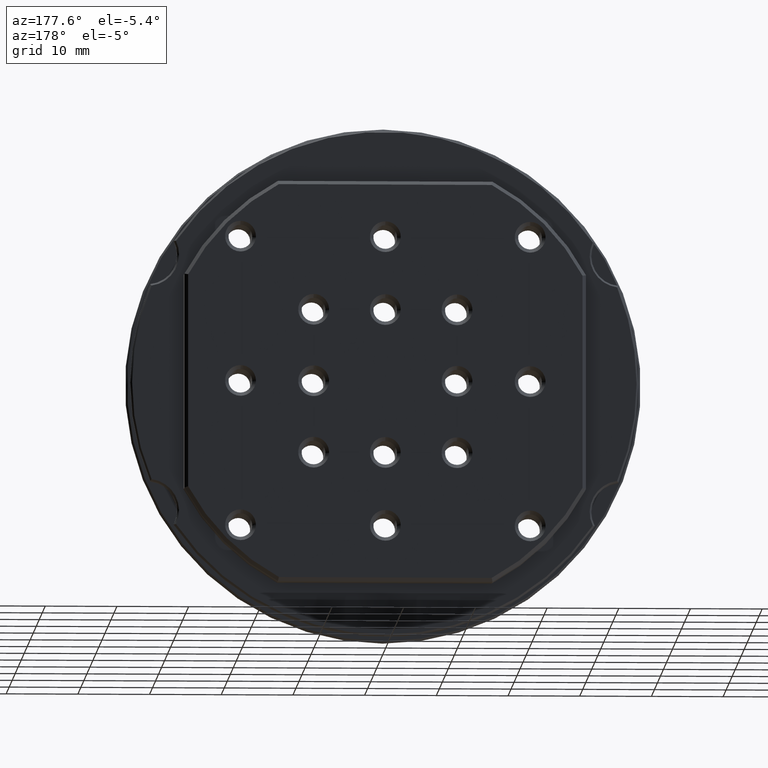
[diagram: clean part render]
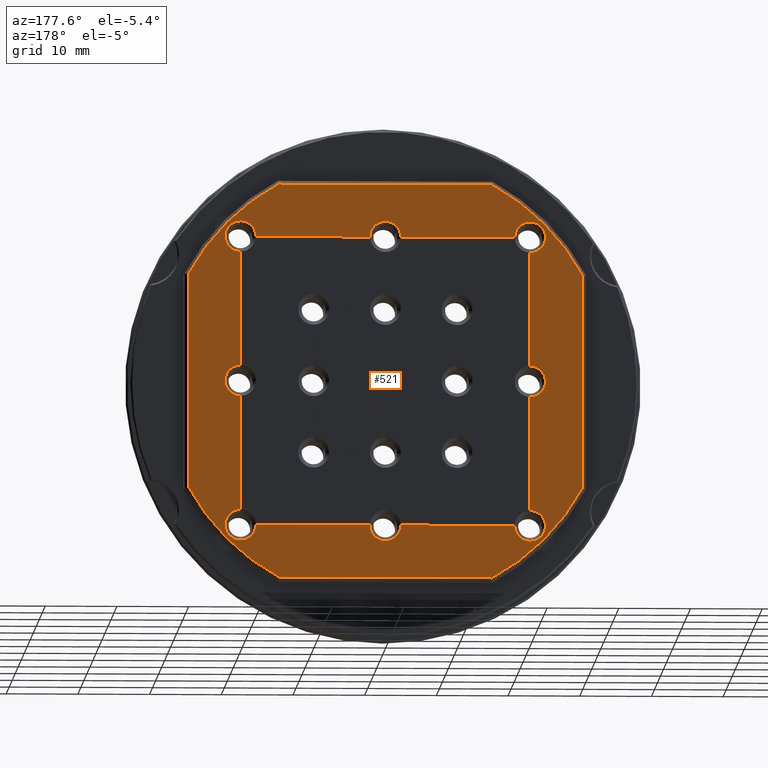
[diagram: same view with one face highlighted and labeled with its STEP entity id]
A machine part, auxiliary view. The second image highlights one B-rep face of the part: STEP entity #521.
In plain terms, the highlighted planar face has unit normal (0, 1, 0).
Its self-contained STEP definition (entity closure, byte-faithful):
#53 = CARTESIAN_POINT ( 'NONE',  ( -20.15000000000000213, 8.900000000000000355, 2.149418526020452802 ) ) ;
#72 = VERTEX_POINT ( 'NONE', #2842 ) ;
#73 = DIRECTION ( 'NONE',  ( 0.000000000000000000, 0.000000000000000000, 1.000000000000000000 ) ) ;
#83 = CARTESIAN_POINT ( 'NONE',  ( 20.15000000000000213, 8.900000000000000355, 2.149418526020467013 ) ) ;
#99 = EDGE_CURVE ( 'NONE', #161, #1154, #1215, .T. ) ;
#101 = VERTEX_POINT ( 'NONE', #5266 ) ;
#105 = VERTEX_POINT ( 'NONE', #2138 ) ;
#120 = DIRECTION ( 'NONE',  ( -0.000000000000000000, 1.000000000000000000, -0.000000000000000000 ) ) ;
#128 = CARTESIAN_POINT ( 'NONE',  ( -27.49999999999997868, 8.900000000000000355, 0.000000000000000000 ) ) ;
#143 = EDGE_CURVE ( 'NONE', #6632, #900, #5487, .T. ) ;
#152 = DIRECTION ( 'NONE',  ( 8.609049508569761530E-17, 0.000000000000000000, 1.000000000000000000 ) ) ;
#161 = VERTEX_POINT ( 'NONE', #7356 ) ;
#226 = DIRECTION ( 'NONE',  ( 0.000000000000000000, 1.000000000000000000, 0.000000000000000000 ) ) ;
#237 = CARTESIAN_POINT ( 'NONE',  ( -20.15000000000000213, 8.900000000000000355, -20.15000000000000568 ) ) ;
#326 = LINE ( 'NONE', #4583, #6778 ) ;
#351 = CARTESIAN_POINT ( 'NONE',  ( -14.84292760879740314, 8.900000000000000355, -27.49999999999997868 ) ) ;
#364 = DIRECTION ( 'NONE',  ( -1.000000000000000000, -0.000000000000000000, -0.000000000000000000 ) ) ;
#420 = CARTESIAN_POINT ( 'NONE',  ( -20.15000000000000213, 8.900000000000000355, -20.15000000000000568 ) ) ;
#472 = AXIS2_PLACEMENT_3D ( 'NONE', #4297, #5599, #1836 ) ;
#476 = VERTEX_POINT ( 'NONE', #3898 ) ;
#483 = EDGE_CURVE ( 'NONE', #5213, #7042, #6382, .T. ) ;
#521 = ADVANCED_FACE ( 'NONE', ( #4480, #5792 ), #7082, .T. ) ;
#542 = EDGE_CURVE ( 'NONE', #4842, #2714, #6972, .T. ) ;
#550 = AXIS2_PLACEMENT_3D ( 'NONE', #2195, #6021, #1693 ) ;
#578 = CARTESIAN_POINT ( 'NONE',  ( 14.84292760879741202, 8.900000000000000355, -27.49999999999998224 ) ) ;
#593 = CIRCLE ( 'NONE', #8093, 31.24999999999998579 ) ;
#606 = DIRECTION ( 'NONE',  ( 1.000000000000000000, 0.000000000000000000, 0.000000000000000000 ) ) ;
#609 = DIRECTION ( 'NONE',  ( 0.000000000000000000, 0.000000000000000000, 1.000000000000000000 ) ) ;
#624 = ORIENTED_EDGE ( 'NONE', *, *, #4844, .T. ) ;
#629 = AXIS2_PLACEMENT_3D ( 'NONE', #6333, #3838, #5789 ) ;
#639 = CARTESIAN_POINT ( 'NONE',  ( 2.632990618166809235E-16, 8.900000000000000355, -22.34999999999999432 ) ) ;
#641 = CIRCLE ( 'NONE', #998, 2.149999999999999023 ) ;
#692 = CIRCLE ( 'NONE', #4410, 2.149999999999999023 ) ;
#744 = DIRECTION ( 'NONE',  ( 0.000000000000000000, 0.000000000000000000, 1.000000000000000000 ) ) ;
#769 = CARTESIAN_POINT ( 'NONE',  ( -20.19999999999999929, 8.900000000000000355, 20.19999999999999574 ) ) ;
#826 = CARTESIAN_POINT ( 'NONE',  ( 27.50000000000000000, 8.900000000000000355, 0.000000000000000000 ) ) ;
#837 = ORIENTED_EDGE ( 'NONE', *, *, #3232, .F. ) ;
#845 = ORIENTED_EDGE ( 'NONE', *, *, #2710, .F. ) ;
#865 = DIRECTION ( 'NONE',  ( -0.000000000000000000, 1.000000000000000000, -0.000000000000000000 ) ) ;
#900 = VERTEX_POINT ( 'NONE', #6964 ) ;
#915 = CIRCLE ( 'NONE', #8105, 2.149999999999999023 ) ;
#953 = VERTEX_POINT ( 'NONE', #4311 ) ;
#965 = VERTEX_POINT ( 'NONE', #3858 ) ;
#975 = EDGE_CURVE ( 'NONE', #3312, #953, #1998, .T. ) ;
#989 = DIRECTION ( 'NONE',  ( 0.000000000000000000, 0.000000000000000000, 1.000000000000000000 ) ) ;
#998 = AXIS2_PLACEMENT_3D ( 'NONE', #769, #5215, #2545 ) ;
#1008 = AXIS2_PLACEMENT_3D ( 'NONE', #6035, #7913, #4147 ) ;
#1137 = DIRECTION ( 'NONE',  ( -0.000000000000000000, 1.000000000000000000, -0.000000000000000000 ) ) ;
#1154 = VERTEX_POINT ( 'NONE', #4849 ) ;
#1195 = DIRECTION ( 'NONE',  ( 0.000000000000000000, 0.000000000000000000, 1.000000000000000000 ) ) ;
#1215 = CIRCLE ( 'NONE', #6411, 31.24999999999999289 ) ;
#1228 = LINE ( 'NONE', #826, #8169 ) ;
#1246 = AXIS2_PLACEMENT_3D ( 'NONE', #4128, #4157, #1195 ) ;
#1261 = DIRECTION ( 'NONE',  ( 0.000000000000000000, 0.000000000000000000, 1.000000000000000000 ) ) ;
#1271 = CARTESIAN_POINT ( 'NONE',  ( 20.20000000000000284, 8.900000000000000355, 20.19999999999999929 ) ) ;
#1296 = DIRECTION ( 'NONE',  ( -0.000000000000000000, 1.000000000000000000, -0.000000000000000000 ) ) ;
#1297 = DIRECTION ( 'NONE',  ( -0.000000000000000000, 1.000000000000000000, -0.000000000000000000 ) ) ;
#1344 = EDGE_CURVE ( 'NONE', #953, #72, #6072, .T. ) ;
#1358 = EDGE_CURVE ( 'NONE', #6202, #105, #692, .T. ) ;
#1373 = VECTOR ( 'NONE', #4714, 1000.000000000000000 ) ;
#1385 = CARTESIAN_POINT ( 'NONE',  ( 20.19999999999999929, 8.900000000000000355, -20.19999999999999929 ) ) ;
#1387 = CARTESIAN_POINT ( 'NONE',  ( 0.000000000000000000, 8.900000000000000355, -20.19999999999999574 ) ) ;
#1399 = DIRECTION ( 'NONE',  ( 8.609049508569761530E-17, 0.000000000000000000, 1.000000000000000000 ) ) ;
#1426 = AXIS2_PLACEMENT_3D ( 'NONE', #7698, #1296, #1960 ) ;
#1448 = DIRECTION ( 'NONE',  ( 0.000000000000000000, 0.000000000000000000, 1.000000000000000000 ) ) ;
#1449 = EDGE_CURVE ( 'NONE', #101, #161, #6855, .T. ) ;
#1481 = CARTESIAN_POINT ( 'NONE',  ( -20.14999999999999858, 8.900000000000000355, 20.14999999999999858 ) ) ;
#1485 = AXIS2_PLACEMENT_3D ( 'NONE', #7523, #2509, #1261 ) ;
#1496 = CARTESIAN_POINT ( 'NONE',  ( 0.000000000000000000, 8.900000000000000355, 0.000000000000000000 ) ) ;
#1504 = AXIS2_PLACEMENT_3D ( 'NONE', #4732, #6039, #7266 ) ;
#1513 = ORIENTED_EDGE ( 'NONE', *, *, #542, .F. ) ;
#1527 = CARTESIAN_POINT ( 'NONE',  ( -20.20000000000000284, 8.900000000000000355, -2.150000000000012790 ) ) ;
#1554 = VERTEX_POINT ( 'NONE', #2694 ) ;
#1593 = CARTESIAN_POINT ( 'NONE',  ( -20.20000000000000284, 8.900000000000000355, 2.149999999999985256 ) ) ;
#1620 = CARTESIAN_POINT ( 'NONE',  ( 2.149418526020467901, 8.900000000000000355, 20.14999999999999858 ) ) ;
#1683 = ORIENTED_EDGE ( 'NONE', *, *, #6717, .F. ) ;
#1693 = DIRECTION ( 'NONE',  ( 0.000000000000000000, 0.000000000000000000, 1.000000000000000000 ) ) ;
#1698 = CARTESIAN_POINT ( 'NONE',  ( 14.84292760879738893, 8.900000000000000355, 27.49999999999999289 ) ) ;
#1773 = AXIS2_PLACEMENT_3D ( 'NONE', #1387, #7189, #2755 ) ;
#1801 = CARTESIAN_POINT ( 'NONE',  ( 27.50000000000000000, 8.900000000000000355, 14.84292760879737827 ) ) ;
#1805 = ORIENTED_EDGE ( 'NONE', *, *, #143, .F. ) ;
#1836 = DIRECTION ( 'NONE',  ( 0.000000000000000000, 0.000000000000000000, 1.000000000000000000 ) ) ;
#1843 = CIRCLE ( 'NONE', #3456, 2.149999999999999023 ) ;
#1865 = VECTOR ( 'NONE', #364, 1000.000000000000000 ) ;
#1891 = VECTOR ( 'NONE', #5120, 1000.000000000000000 ) ;
#1914 = CIRCLE ( 'NONE', #5781, 2.149999999999999023 ) ;
#1954 = CARTESIAN_POINT ( 'NONE',  ( -20.15000000000000213, 8.900000000000000355, -20.15000000000000568 ) ) ;
#1960 = DIRECTION ( 'NONE',  ( 0.000000000000000000, 0.000000000000000000, 1.000000000000000000 ) ) ;
#1977 = ORIENTED_EDGE ( 'NONE', *, *, #2031, .F. ) ;
#1998 = CIRCLE ( 'NONE', #7407, 2.149999999999999023 ) ;
#2031 = EDGE_CURVE ( 'NONE', #4835, #4975, #5206, .T. ) ;
#2036 = ORIENTED_EDGE ( 'NONE', *, *, #5270, .F. ) ;
#2045 = CARTESIAN_POINT ( 'NONE',  ( 20.20000000000000284, 8.900000000000000355, 2.149999999999999023 ) ) ;
#2131 = ORIENTED_EDGE ( 'NONE', *, *, #2411, .F. ) ;
#2134 = ORIENTED_EDGE ( 'NONE', *, *, #1449, .T. ) ;
#2138 = CARTESIAN_POINT ( 'NONE',  ( -20.15000000000000213, 8.900000000000000355, -18.05058147397953050 ) ) ;
#2153 = ORIENTED_EDGE ( 'NONE', *, *, #5078, .F. ) ;
#2169 = CARTESIAN_POINT ( 'NONE',  ( -20.19999999999999929, 8.900000000000000355, 20.19999999999999574 ) ) ;
#2190 = CARTESIAN_POINT ( 'NONE',  ( 20.19999999999999929, 8.900000000000000355, -20.19999999999999929 ) ) ;
#2195 = CARTESIAN_POINT ( 'NONE',  ( -20.20000000000000284, 8.900000000000000355, -1.387778780781445676E-14 ) ) ;
#2241 = AXIS2_PLACEMENT_3D ( 'NONE', #1496, #4036, #2806 ) ;
#2254 = VERTEX_POINT ( 'NONE', #578 ) ;
#2291 = EDGE_CURVE ( 'NONE', #1554, #2666, #6544, .T. ) ;
#2393 = DIRECTION ( 'NONE',  ( -0.000000000000000000, 1.000000000000000000, -0.000000000000000000 ) ) ;
#2411 = EDGE_CURVE ( 'NONE', #4544, #6202, #1843, .T. ) ;
#2442 = CARTESIAN_POINT ( 'NONE',  ( 0.000000000000000000, 8.900000000000000355, -20.19999999999999574 ) ) ;
#2444 = AXIS2_PLACEMENT_3D ( 'NONE', #2442, #6257, #3071 ) ;
#2480 = CARTESIAN_POINT ( 'NONE',  ( 20.19999999999999929, 8.900000000000000355, -18.05000000000000071 ) ) ;
#2483 = ORIENTED_EDGE ( 'NONE', *, *, #3817, .T. ) ;
#2509 = DIRECTION ( 'NONE',  ( -0.000000000000000000, 1.000000000000000000, -0.000000000000000000 ) ) ;
#2545 = DIRECTION ( 'NONE',  ( 0.000000000000000000, 0.000000000000000000, 1.000000000000000000 ) ) ;
#2546 = EDGE_CURVE ( 'NONE', #105, #965, #5125, .T. ) ;
#2550 = CARTESIAN_POINT ( 'NONE',  ( 20.15000000000000213, 8.900000000000000355, -20.15000000000000568 ) ) ;
#2570 = VERTEX_POINT ( 'NONE', #2045 ) ;
#2584 = VECTOR ( 'NONE', #3896, 1000.000000000000000 ) ;
#2592 = DIRECTION ( 'NONE',  ( -1.000000000000000000, 0.000000000000000000, 1.239088197126290817E-16 ) ) ;
#2660 = VERTEX_POINT ( 'NONE', #351 ) ;
#2665 = CARTESIAN_POINT ( 'NONE',  ( 18.05058147397953405, 8.900000000000000355, 20.14999999999999858 ) ) ;
#2666 = VERTEX_POINT ( 'NONE', #6088 ) ;
#2676 = ORIENTED_EDGE ( 'NONE', *, *, #2291, .F. ) ;
#2684 = VERTEX_POINT ( 'NONE', #3452 ) ;
#2694 = CARTESIAN_POINT ( 'NONE',  ( 20.20000000000000284, 8.900000000000000355, -2.149999999999999023 ) ) ;
#2710 = EDGE_CURVE ( 'NONE', #965, #3920, #7587, .T. ) ;
#2714 = VERTEX_POINT ( 'NONE', #1620 ) ;
#2736 = DIRECTION ( 'NONE',  ( 0.000000000000000000, 1.000000000000000000, 0.000000000000000000 ) ) ;
#2755 = DIRECTION ( 'NONE',  ( 0.000000000000000000, 0.000000000000000000, 1.000000000000000000 ) ) ;
#2764 = CARTESIAN_POINT ( 'NONE',  ( 27.50000000000000000, 8.900000000000000355, -14.84292760879737649 ) ) ;
#2806 = DIRECTION ( 'NONE',  ( 0.000000000000000000, -0.000000000000000000, 1.000000000000000000 ) ) ;
#2842 = CARTESIAN_POINT ( 'NONE',  ( 20.20000000000000284, 8.900000000000000355, 18.05000000000000071 ) ) ;
#2844 = CARTESIAN_POINT ( 'NONE',  ( -20.14999999999999858, 8.900000000000000355, 18.05058147397953050 ) ) ;
#2915 = ORIENTED_EDGE ( 'NONE', *, *, #7750, .T. ) ;
#2923 = CARTESIAN_POINT ( 'NONE',  ( 18.05058147397953405, 8.900000000000000355, -20.15000000000000568 ) ) ;
#2995 = EDGE_CURVE ( 'NONE', #3749, #3100, #5313, .T. ) ;
#2996 = CARTESIAN_POINT ( 'NONE',  ( 20.15000000000000213, 8.900000000000000355, -18.05058147397953405 ) ) ;
#3010 = VERTEX_POINT ( 'NONE', #2764 ) ;
#3030 = ORIENTED_EDGE ( 'NONE', *, *, #1358, .F. ) ;
#3034 = LINE ( 'NONE', #7477, #6036 ) ;
#3071 = DIRECTION ( 'NONE',  ( 0.000000000000000000, 0.000000000000000000, 1.000000000000000000 ) ) ;
#3072 = EDGE_CURVE ( 'NONE', #476, #6632, #1914, .T. ) ;
#3076 = DIRECTION ( 'NONE',  ( -0.000000000000000000, 1.000000000000000000, -0.000000000000000000 ) ) ;
#3100 = VERTEX_POINT ( 'NONE', #2844 ) ;
#3105 = CIRCLE ( 'NONE', #472, 2.149999999999999023 ) ;
#3184 = CARTESIAN_POINT ( 'NONE',  ( 0.000000000000000000, 8.900000000000000355, 22.34999999999999432 ) ) ;
#3207 = EDGE_LOOP ( 'NONE', ( #5805, #3500, #1977, #6662, #6147, #2676, #4662, #3690, #1683, #8075, #4136, #5569, #2153, #1513, #6121, #1805, #4442, #2036, #5614, #5669, #837, #5010, #845, #3278, #3030, #2131, #6456, #6566, #3401, #3811 ) ) ;
#3219 = CIRCLE ( 'NONE', #1008, 2.149999999999999023 ) ;
#3232 = EDGE_CURVE ( 'NONE', #6235, #3749, #3884, .T. ) ;
#3261 = DIRECTION ( 'NONE',  ( -0.000000000000000000, 1.000000000000000000, -0.000000000000000000 ) ) ;
#3278 = ORIENTED_EDGE ( 'NONE', *, *, #2546, .F. ) ;
#3312 = VERTEX_POINT ( 'NONE', #2665 ) ;
#3348 = EDGE_CURVE ( 'NONE', #1154, #3578, #4875, .T. ) ;
#3357 = EDGE_CURVE ( 'NONE', #2570, #1554, #6884, .T. ) ;
#3401 = ORIENTED_EDGE ( 'NONE', *, *, #5990, .F. ) ;
#3452 = CARTESIAN_POINT ( 'NONE',  ( 20.15000000000000568, 8.900000000000000355, 18.05058147397953405 ) ) ;
#3456 = AXIS2_PLACEMENT_3D ( 'NONE', #6993, #3261, #609 ) ;
#3500 = ORIENTED_EDGE ( 'NONE', *, *, #5495, .F. ) ;
#3578 = VERTEX_POINT ( 'NONE', #1698 ) ;
#3607 = CIRCLE ( 'NONE', #2444, 2.149999999999999023 ) ;
#3665 = AXIS2_PLACEMENT_3D ( 'NONE', #6659, #7909, #989 ) ;
#3690 = ORIENTED_EDGE ( 'NONE', *, *, #6827, .F. ) ;
#3702 = CARTESIAN_POINT ( 'NONE',  ( -20.19999999999999929, 8.900000000000000355, 20.19999999999999574 ) ) ;
#3749 = VERTEX_POINT ( 'NONE', #53 ) ;
#3752 = DIRECTION ( 'NONE',  ( -0.000000000000000000, 1.000000000000000000, -0.000000000000000000 ) ) ;
#3757 = CARTESIAN_POINT ( 'NONE',  ( 0.000000000000000000, 8.900000000000000355, 0.000000000000000000 ) ) ;
#3811 = ORIENTED_EDGE ( 'NONE', *, *, #483, .F. ) ;
#3817 = EDGE_CURVE ( 'NONE', #2660, #101, #593, .T. ) ;
#3838 = DIRECTION ( 'NONE',  ( -0.000000000000000000, 1.000000000000000000, -0.000000000000000000 ) ) ;
#3858 = CARTESIAN_POINT ( 'NONE',  ( -20.15000000000000213, 8.900000000000000355, -2.149418526020480336 ) ) ;
#3884 = CIRCLE ( 'NONE', #550, 2.149999999999999023 ) ;
#3896 = DIRECTION ( 'NONE',  ( 0.000000000000000000, 0.000000000000000000, 1.000000000000000000 ) ) ;
#3897 = DIRECTION ( 'NONE',  ( -0.000000000000000000, 1.000000000000000000, -0.000000000000000000 ) ) ;
#3898 = CARTESIAN_POINT ( 'NONE',  ( -20.19999999999999929, 8.900000000000000355, 22.34999999999999432 ) ) ;
#3920 = VERTEX_POINT ( 'NONE', #1527 ) ;
#3941 = EDGE_CURVE ( 'NONE', #8208, #5213, #6842, .T. ) ;
#3957 = CIRCLE ( 'NONE', #5414, 31.24999999999998934 ) ;
#4036 = DIRECTION ( 'NONE',  ( 0.000000000000000000, 1.000000000000000000, 0.000000000000000000 ) ) ;
#4128 = CARTESIAN_POINT ( 'NONE',  ( 20.20000000000000284, 8.900000000000000355, 0.000000000000000000 ) ) ;
#4136 = ORIENTED_EDGE ( 'NONE', *, *, #1344, .F. ) ;
#4147 = DIRECTION ( 'NONE',  ( 0.000000000000000000, 0.000000000000000000, 1.000000000000000000 ) ) ;
#4157 = DIRECTION ( 'NONE',  ( -0.000000000000000000, 1.000000000000000000, -0.000000000000000000 ) ) ;
#4218 = CIRCLE ( 'NONE', #629, 2.149999999999999023 ) ;
#4245 = AXIS2_PLACEMENT_3D ( 'NONE', #1385, #3897, #6458 ) ;
#4297 = CARTESIAN_POINT ( 'NONE',  ( 20.20000000000000284, 8.900000000000000355, 20.19999999999999929 ) ) ;
#4303 = EDGE_CURVE ( 'NONE', #4787, #3010, #1228, .T. ) ;
#4311 = CARTESIAN_POINT ( 'NONE',  ( 20.20000000000000284, 8.900000000000000355, 22.34999999999999787 ) ) ;
#4322 = CARTESIAN_POINT ( 'NONE',  ( -20.19999999999999929, 8.900000000000000355, -20.19999999999999574 ) ) ;
#4347 = CIRCLE ( 'NONE', #1246, 2.149999999999999023 ) ;
#4354 = DIRECTION ( 'NONE',  ( 0.000000000000000000, 0.000000000000000000, 1.000000000000000000 ) ) ;
#4379 = CARTESIAN_POINT ( 'NONE',  ( 20.20000000000000284, 8.900000000000000355, 20.19999999999999929 ) ) ;
#4410 = AXIS2_PLACEMENT_3D ( 'NONE', #4322, #3076, #7515 ) ;
#4442 = ORIENTED_EDGE ( 'NONE', *, *, #3072, .F. ) ;
#4458 = CARTESIAN_POINT ( 'NONE',  ( 3.407492542097299537E-15, 8.900000000000000355, 27.49999999999999645 ) ) ;
#4461 = AXIS2_PLACEMENT_3D ( 'NONE', #2190, #865, #5315 ) ;
#4475 = CARTESIAN_POINT ( 'NONE',  ( 20.15000000000000213, 8.900000000000000355, -20.15000000000000568 ) ) ;
#4480 = FACE_BOUND ( 'NONE', #3207, .T. ) ;
#4522 = DIRECTION ( 'NONE',  ( 0.000000000000000000, 1.000000000000000000, 0.000000000000000000 ) ) ;
#4544 = VERTEX_POINT ( 'NONE', #6786 ) ;
#4571 = LINE ( 'NONE', #4475, #1891 ) ;
#4581 = EDGE_CURVE ( 'NONE', #72, #2684, #3105, .T. ) ;
#4583 = CARTESIAN_POINT ( 'NONE',  ( -3.407492542097297565E-15, 8.900000000000000355, -27.49999999999998224 ) ) ;
#4655 = DIRECTION ( 'NONE',  ( 0.000000000000000000, 0.000000000000000000, 1.000000000000000000 ) ) ;
#4662 = ORIENTED_EDGE ( 'NONE', *, *, #3357, .F. ) ;
#4701 = CARTESIAN_POINT ( 'NONE',  ( -20.19999999999999929, 8.900000000000000355, -18.04999999999999716 ) ) ;
#4714 = DIRECTION ( 'NONE',  ( -1.000000000000000000, -0.000000000000000000, -0.000000000000000000 ) ) ;
#4725 = CARTESIAN_POINT ( 'NONE',  ( -18.05058147397953405, 8.900000000000000355, 20.14999999999999858 ) ) ;
#4732 = CARTESIAN_POINT ( 'NONE',  ( 0.000000000000000000, 8.900000000000000355, 20.19999999999999574 ) ) ;
#4768 = EDGE_CURVE ( 'NONE', #3100, #7490, #915, .T. ) ;
#4787 = VERTEX_POINT ( 'NONE', #1801 ) ;
#4835 = VERTEX_POINT ( 'NONE', #2480 ) ;
#4842 = VERTEX_POINT ( 'NONE', #3184 ) ;
#4844 = EDGE_CURVE ( 'NONE', #3578, #4787, #8048, .T. ) ;
#4849 = CARTESIAN_POINT ( 'NONE',  ( -14.84292760879738893, 8.900000000000000355, 27.49999999999999645 ) ) ;
#4875 = LINE ( 'NONE', #4458, #5090 ) ;
#4926 = ORIENTED_EDGE ( 'NONE', *, *, #4303, .T. ) ;
#4975 = VERTEX_POINT ( 'NONE', #7339 ) ;
#5010 = ORIENTED_EDGE ( 'NONE', *, *, #5218, .F. ) ;
#5075 = LINE ( 'NONE', #2550, #5786 ) ;
#5078 = EDGE_CURVE ( 'NONE', #2714, #3312, #3034, .T. ) ;
#5090 = VECTOR ( 'NONE', #7053, 1000.000000000000000 ) ;
#5120 = DIRECTION ( 'NONE',  ( -8.609049508569761530E-17, -0.000000000000000000, -1.000000000000000000 ) ) ;
#5125 = LINE ( 'NONE', #7121, #6030 ) ;
#5206 = CIRCLE ( 'NONE', #4245, 2.149999999999999023 ) ;
#5213 = VERTEX_POINT ( 'NONE', #5811 ) ;
#5215 = DIRECTION ( 'NONE',  ( -0.000000000000000000, 1.000000000000000000, -0.000000000000000000 ) ) ;
#5218 = EDGE_CURVE ( 'NONE', #3920, #6235, #6316, .T. ) ;
#5239 = DIRECTION ( 'NONE',  ( -0.000000000000000000, 1.000000000000000000, -0.000000000000000000 ) ) ;
#5266 = CARTESIAN_POINT ( 'NONE',  ( -27.49999999999998224, 8.900000000000000355, -14.84292760879740314 ) ) ;
#5270 = EDGE_CURVE ( 'NONE', #7490, #476, #641, .T. ) ;
#5313 = LINE ( 'NONE', #1954, #7678 ) ;
#5315 = DIRECTION ( 'NONE',  ( 0.000000000000000000, 0.000000000000000000, 1.000000000000000000 ) ) ;
#5403 = CIRCLE ( 'NONE', #1485, 2.149999999999999023 ) ;
#5414 = AXIS2_PLACEMENT_3D ( 'NONE', #7184, #226, #4655 ) ;
#5450 = CIRCLE ( 'NONE', #4461, 2.149999999999999023 ) ;
#5487 = LINE ( 'NONE', #1481, #6978 ) ;
#5495 = EDGE_CURVE ( 'NONE', #4975, #8208, #5403, .T. ) ;
#5569 = ORIENTED_EDGE ( 'NONE', *, *, #975, .F. ) ;
#5599 = DIRECTION ( 'NONE',  ( -0.000000000000000000, 1.000000000000000000, -0.000000000000000000 ) ) ;
#5614 = ORIENTED_EDGE ( 'NONE', *, *, #4768, .F. ) ;
#5645 = CARTESIAN_POINT ( 'NONE',  ( 20.20000000000000284, 8.900000000000000355, 0.000000000000000000 ) ) ;
#5663 = LINE ( 'NONE', #420, #1865 ) ;
#5666 = EDGE_CURVE ( 'NONE', #2254, #2660, #326, .T. ) ;
#5669 = ORIENTED_EDGE ( 'NONE', *, *, #2995, .F. ) ;
#5781 = AXIS2_PLACEMENT_3D ( 'NONE', #2169, #5239, #5916 ) ;
#5786 = VECTOR ( 'NONE', #5817, 1000.000000000000000 ) ;
#5789 = DIRECTION ( 'NONE',  ( 0.000000000000000000, 0.000000000000000000, 1.000000000000000000 ) ) ;
#5792 = FACE_OUTER_BOUND ( 'NONE', #6468, .T. ) ;
#5805 = ORIENTED_EDGE ( 'NONE', *, *, #3941, .F. ) ;
#5811 = CARTESIAN_POINT ( 'NONE',  ( 2.149418526020468345, 8.900000000000000355, -20.15000000000000568 ) ) ;
#5812 = DIRECTION ( 'NONE',  ( 0.000000000000000000, 0.000000000000000000, 1.000000000000000000 ) ) ;
#5817 = DIRECTION ( 'NONE',  ( -8.609049508569761530E-17, -0.000000000000000000, -1.000000000000000000 ) ) ;
#5837 = EDGE_CURVE ( 'NONE', #6012, #4835, #5450, .T. ) ;
#5878 = EDGE_CURVE ( 'NONE', #6364, #6241, #5663, .T. ) ;
#5916 = DIRECTION ( 'NONE',  ( 0.000000000000000000, 0.000000000000000000, 1.000000000000000000 ) ) ;
#5939 = DIRECTION ( 'NONE',  ( 1.000000000000000000, 0.000000000000000000, 0.000000000000000000 ) ) ;
#5990 = EDGE_CURVE ( 'NONE', #7042, #6364, #3607, .T. ) ;
#6012 = VERTEX_POINT ( 'NONE', #2996 ) ;
#6021 = DIRECTION ( 'NONE',  ( -0.000000000000000000, 1.000000000000000000, -0.000000000000000000 ) ) ;
#6030 = VECTOR ( 'NONE', #152, 1000.000000000000000 ) ;
#6035 = CARTESIAN_POINT ( 'NONE',  ( -20.19999999999999929, 8.900000000000000355, -20.19999999999999574 ) ) ;
#6036 = VECTOR ( 'NONE', #606, 1000.000000000000000 ) ;
#6039 = DIRECTION ( 'NONE',  ( -0.000000000000000000, 1.000000000000000000, -0.000000000000000000 ) ) ;
#6072 = CIRCLE ( 'NONE', #6975, 2.149999999999999023 ) ;
#6082 = EDGE_CURVE ( 'NONE', #900, #4842, #4218, .T. ) ;
#6088 = CARTESIAN_POINT ( 'NONE',  ( 20.15000000000000213, 8.900000000000000355, -2.149418526020467013 ) ) ;
#6121 = ORIENTED_EDGE ( 'NONE', *, *, #6082, .F. ) ;
#6147 = ORIENTED_EDGE ( 'NONE', *, *, #7560, .F. ) ;
#6200 = EDGE_CURVE ( 'NONE', #6241, #4544, #3219, .T. ) ;
#6202 = VERTEX_POINT ( 'NONE', #4701 ) ;
#6235 = VERTEX_POINT ( 'NONE', #1593 ) ;
#6241 = VERTEX_POINT ( 'NONE', #7856 ) ;
#6257 = DIRECTION ( 'NONE',  ( -0.000000000000000000, 1.000000000000000000, -0.000000000000000000 ) ) ;
#6258 = CARTESIAN_POINT ( 'NONE',  ( -20.19999999999999929, 8.900000000000000355, 18.04999999999999716 ) ) ;
#6316 = CIRCLE ( 'NONE', #1426, 2.149999999999999023 ) ;
#6333 = CARTESIAN_POINT ( 'NONE',  ( 0.000000000000000000, 8.900000000000000355, 20.19999999999999574 ) ) ;
#6364 = VERTEX_POINT ( 'NONE', #7613 ) ;
#6382 = CIRCLE ( 'NONE', #1773, 2.149999999999999023 ) ;
#6411 = AXIS2_PLACEMENT_3D ( 'NONE', #6553, #2736, #7872 ) ;
#6456 = ORIENTED_EDGE ( 'NONE', *, *, #6200, .F. ) ;
#6458 = DIRECTION ( 'NONE',  ( 0.000000000000000000, 0.000000000000000000, 1.000000000000000000 ) ) ;
#6468 = EDGE_LOOP ( 'NONE', ( #624, #4926, #2915, #6820, #2483, #2134, #7652, #7415 ) ) ;
#6482 = DIRECTION ( 'NONE',  ( 0.000000000000000000, 0.000000000000000000, -1.000000000000000000 ) ) ;
#6544 = CIRCLE ( 'NONE', #6620, 2.149999999999999023 ) ;
#6553 = CARTESIAN_POINT ( 'NONE',  ( 0.000000000000000000, 8.900000000000000355, 0.000000000000000000 ) ) ;
#6566 = ORIENTED_EDGE ( 'NONE', *, *, #5878, .F. ) ;
#6620 = AXIS2_PLACEMENT_3D ( 'NONE', #5645, #3752, #6740 ) ;
#6629 = AXIS2_PLACEMENT_3D ( 'NONE', #7674, #120, #744 ) ;
#6632 = VERTEX_POINT ( 'NONE', #4725 ) ;
#6659 = CARTESIAN_POINT ( 'NONE',  ( -20.20000000000000284, 8.900000000000000355, -1.387778780781445676E-14 ) ) ;
#6662 = ORIENTED_EDGE ( 'NONE', *, *, #5837, .F. ) ;
#6717 = EDGE_CURVE ( 'NONE', #2684, #6812, #4571, .T. ) ;
#6740 = DIRECTION ( 'NONE',  ( 0.000000000000000000, 0.000000000000000000, 1.000000000000000000 ) ) ;
#6778 = VECTOR ( 'NONE', #2592, 1000.000000000000000 ) ;
#6786 = CARTESIAN_POINT ( 'NONE',  ( -20.19999999999999929, 8.900000000000000355, -22.34999999999999432 ) ) ;
#6812 = VERTEX_POINT ( 'NONE', #83 ) ;
#6820 = ORIENTED_EDGE ( 'NONE', *, *, #5666, .T. ) ;
#6827 = EDGE_CURVE ( 'NONE', #6812, #2570, #4347, .T. ) ;
#6842 = LINE ( 'NONE', #237, #1373 ) ;
#6855 = LINE ( 'NONE', #128, #2584 ) ;
#6884 = CIRCLE ( 'NONE', #6629, 2.149999999999999023 ) ;
#6964 = CARTESIAN_POINT ( 'NONE',  ( -2.149418526020467901, 8.900000000000000355, 20.14999999999999858 ) ) ;
#6972 = CIRCLE ( 'NONE', #1504, 2.149999999999999023 ) ;
#6975 = AXIS2_PLACEMENT_3D ( 'NONE', #4379, #1137, #8203 ) ;
#6978 = VECTOR ( 'NONE', #5939, 1000.000000000000000 ) ;
#6993 = CARTESIAN_POINT ( 'NONE',  ( -20.19999999999999929, 8.900000000000000355, -20.19999999999999574 ) ) ;
#7042 = VERTEX_POINT ( 'NONE', #639 ) ;
#7053 = DIRECTION ( 'NONE',  ( 1.000000000000000000, 0.000000000000000000, -1.239088197126290817E-16 ) ) ;
#7067 = CARTESIAN_POINT ( 'NONE',  ( 0.000000000000000000, 8.900000000000000355, 0.000000000000000000 ) ) ;
#7082 = PLANE ( 'NONE',  #2241 ) ;
#7089 = DIRECTION ( 'NONE',  ( 0.000000000000000000, 1.000000000000000000, 0.000000000000000000 ) ) ;
#7121 = CARTESIAN_POINT ( 'NONE',  ( -20.15000000000000213, 8.900000000000000355, -20.15000000000000568 ) ) ;
#7184 = CARTESIAN_POINT ( 'NONE',  ( 0.000000000000000000, 8.900000000000000355, 0.000000000000000000 ) ) ;
#7189 = DIRECTION ( 'NONE',  ( -0.000000000000000000, 1.000000000000000000, -0.000000000000000000 ) ) ;
#7266 = DIRECTION ( 'NONE',  ( 0.000000000000000000, 0.000000000000000000, 1.000000000000000000 ) ) ;
#7339 = CARTESIAN_POINT ( 'NONE',  ( 20.19999999999999929, 8.900000000000000355, -22.34999999999999787 ) ) ;
#7356 = CARTESIAN_POINT ( 'NONE',  ( -27.49999999999997868, 8.900000000000000355, 14.84292760879741735 ) ) ;
#7407 = AXIS2_PLACEMENT_3D ( 'NONE', #1271, #1297, #5812 ) ;
#7415 = ORIENTED_EDGE ( 'NONE', *, *, #3348, .T. ) ;
#7477 = CARTESIAN_POINT ( 'NONE',  ( -20.14999999999999858, 8.900000000000000355, 20.14999999999999858 ) ) ;
#7490 = VERTEX_POINT ( 'NONE', #6258 ) ;
#7515 = DIRECTION ( 'NONE',  ( 0.000000000000000000, 0.000000000000000000, 1.000000000000000000 ) ) ;
#7523 = CARTESIAN_POINT ( 'NONE',  ( 20.19999999999999929, 8.900000000000000355, -20.19999999999999929 ) ) ;
#7560 = EDGE_CURVE ( 'NONE', #2666, #6012, #5075, .T. ) ;
#7587 = CIRCLE ( 'NONE', #3665, 2.149999999999999023 ) ;
#7613 = CARTESIAN_POINT ( 'NONE',  ( -2.149418526020468345, 8.900000000000000355, -20.15000000000000568 ) ) ;
#7652 = ORIENTED_EDGE ( 'NONE', *, *, #99, .T. ) ;
#7674 = CARTESIAN_POINT ( 'NONE',  ( 20.20000000000000284, 8.900000000000000355, 0.000000000000000000 ) ) ;
#7678 = VECTOR ( 'NONE', #1399, 1000.000000000000000 ) ;
#7698 = CARTESIAN_POINT ( 'NONE',  ( -20.20000000000000284, 8.900000000000000355, -1.387778780781445676E-14 ) ) ;
#7750 = EDGE_CURVE ( 'NONE', #3010, #2254, #3957, .T. ) ;
#7856 = CARTESIAN_POINT ( 'NONE',  ( -18.05058147397953405, 8.900000000000000355, -20.15000000000000568 ) ) ;
#7872 = DIRECTION ( 'NONE',  ( 0.000000000000000000, 0.000000000000000000, 1.000000000000000000 ) ) ;
#7909 = DIRECTION ( 'NONE',  ( -0.000000000000000000, 1.000000000000000000, -0.000000000000000000 ) ) ;
#7913 = DIRECTION ( 'NONE',  ( -0.000000000000000000, 1.000000000000000000, -0.000000000000000000 ) ) ;
#8048 = CIRCLE ( 'NONE', #8163, 31.24999999999998934 ) ;
#8075 = ORIENTED_EDGE ( 'NONE', *, *, #4581, .F. ) ;
#8093 = AXIS2_PLACEMENT_3D ( 'NONE', #7067, #7089, #1448 ) ;
#8105 = AXIS2_PLACEMENT_3D ( 'NONE', #3702, #2393, #4354 ) ;
#8163 = AXIS2_PLACEMENT_3D ( 'NONE', #3757, #4522, #73 ) ;
#8169 = VECTOR ( 'NONE', #6482, 1000.000000000000000 ) ;
#8203 = DIRECTION ( 'NONE',  ( 0.000000000000000000, 0.000000000000000000, 1.000000000000000000 ) ) ;
#8208 = VERTEX_POINT ( 'NONE', #2923 ) ;